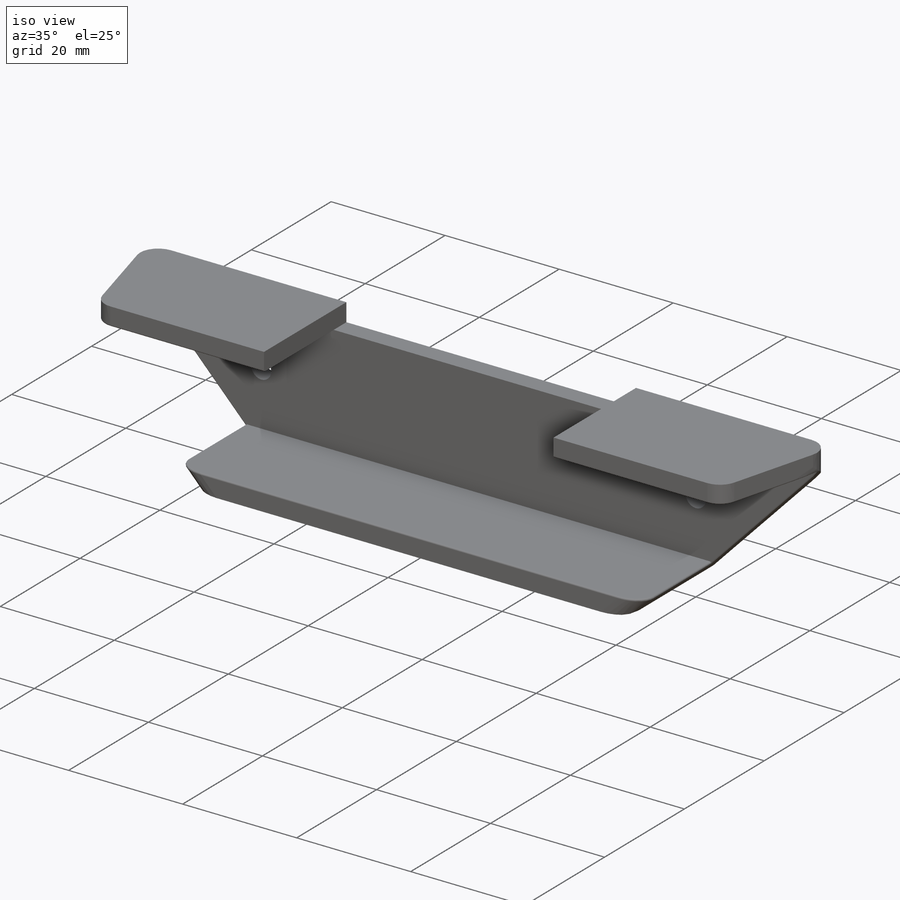
[diagram: iso view]
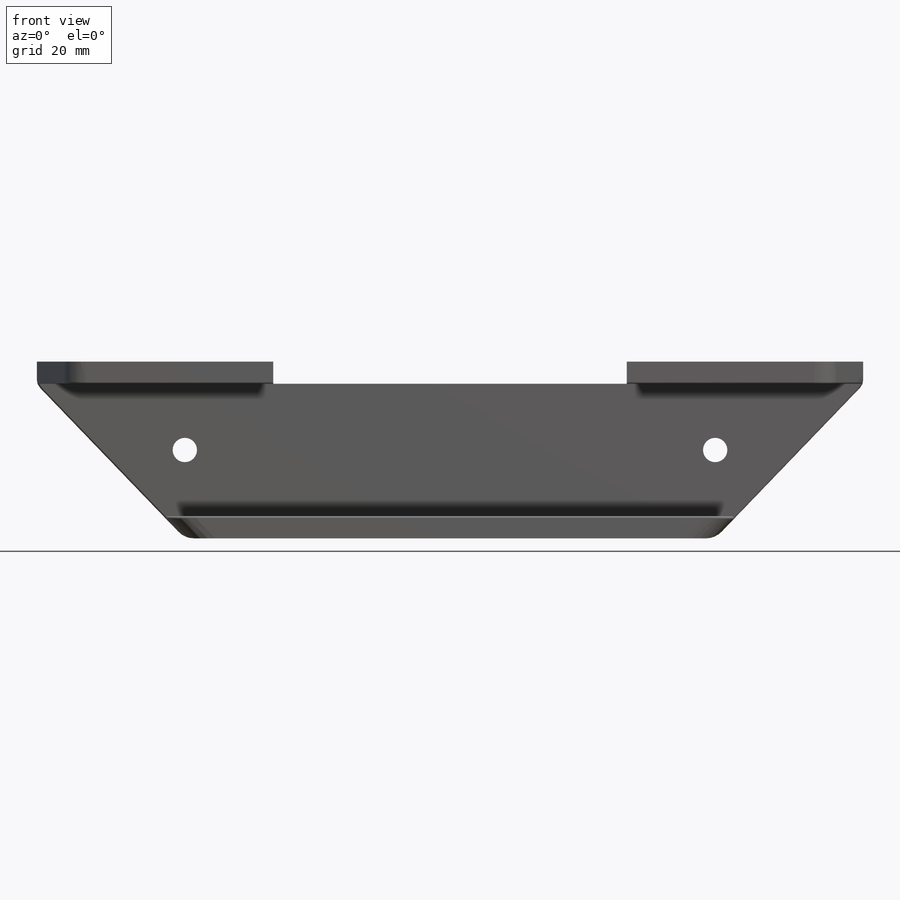
[diagram: front view]
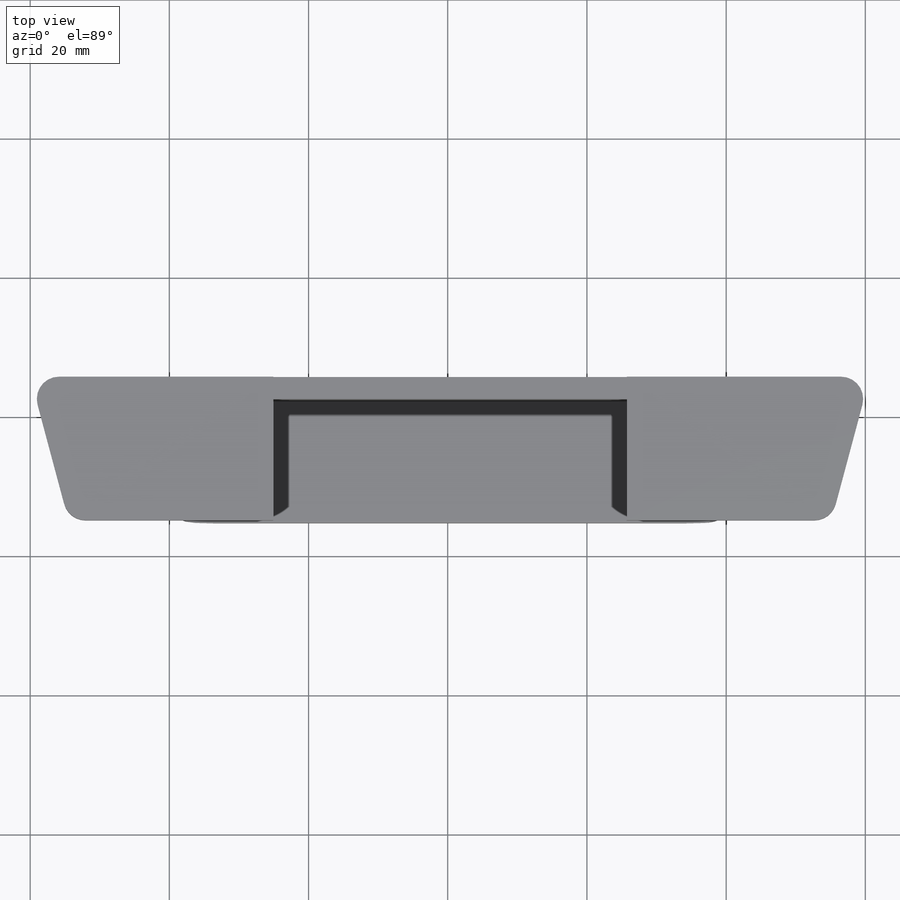
[diagram: top view]
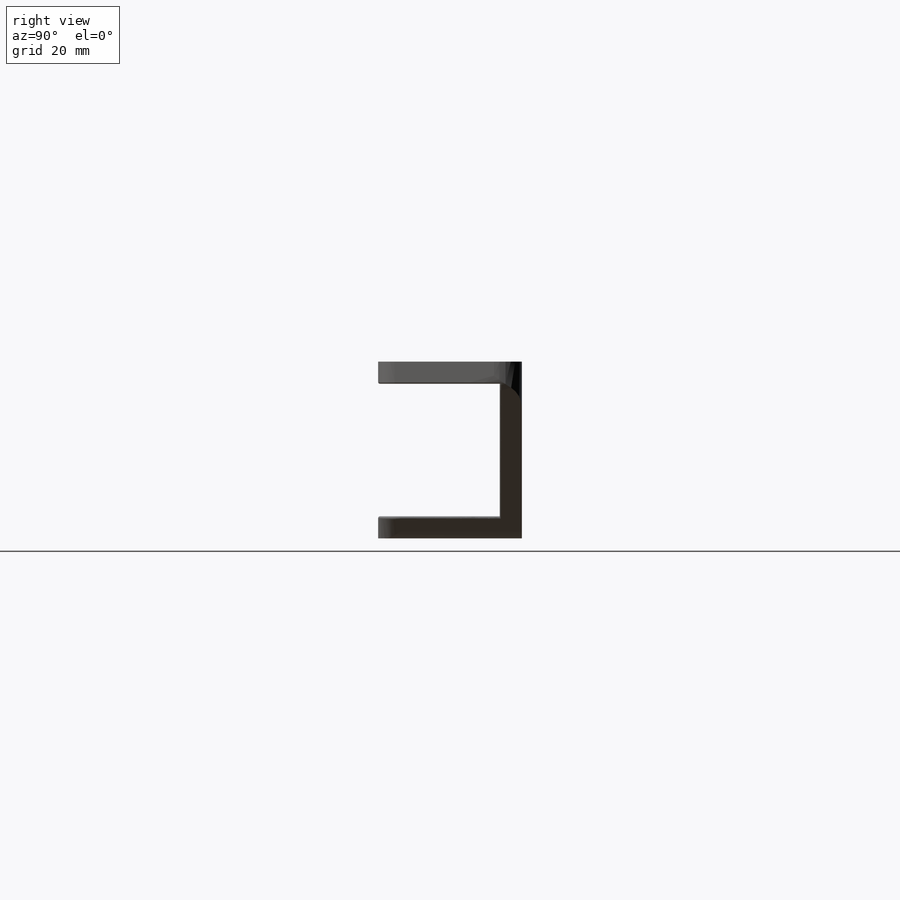
[diagram: right view]
SOLIDWORKS PART (.sldprt)
format: sldprt  version: not decoded by parser v0  size: 484,864 bytes
history: native  units: mm
features: sketch x5, cut_extrude x4, fillet x2, material x1, extrude x1 (+13 scaffold rows collapsed)
feature tree (26):
  scaffold x13  (default folders/planes/origin — collapsed)
  material  "1060 Alloy"
  sketch  "Sketch1"  dims[D1=25.4mm D2=3.175mm]
  extrude  "Boss-Extrude1"  Depth=120.65mm
  sketch  "Sketch2"  dims[c1.D1=20.6375mm c1.D2=20.6375mm c2.D2=15.0deg c2.D3=~22.223174mm c3.D3=15.0deg]
  cut_extrude  "Cut-Extrude1"  [1 undecoded]
  sketch  "Sketch3"  dims[D1=76.2mm]
  cut_extrude  "Cut-Extrude2"  [1 undecoded]
  fillet  "Fillet1"  Radius=3.175mm
  fillet  "Fillet2"  Radius=0.254mm
  sketch  "Sketch4"  dims[D3=3.5mm D1=12.7mm D2=76.2mm]
  cut_extrude  "Cut-Extrude3"  [1 undecoded]
  sketch  "Sketch5"  dims[D1=50.8mm]
  cut_extrude  "Cut-Extrude4"  Depth=3.175mm
decode coverage: 9 of 12 modeling features carry decoded parameters
note: ~ marks probable driven/reference dimensions
note: 3 parameter values undecoded
summary: no parameter record found for 3 features
note: suppression state not decoded; provenance and decode notes live in map.json
